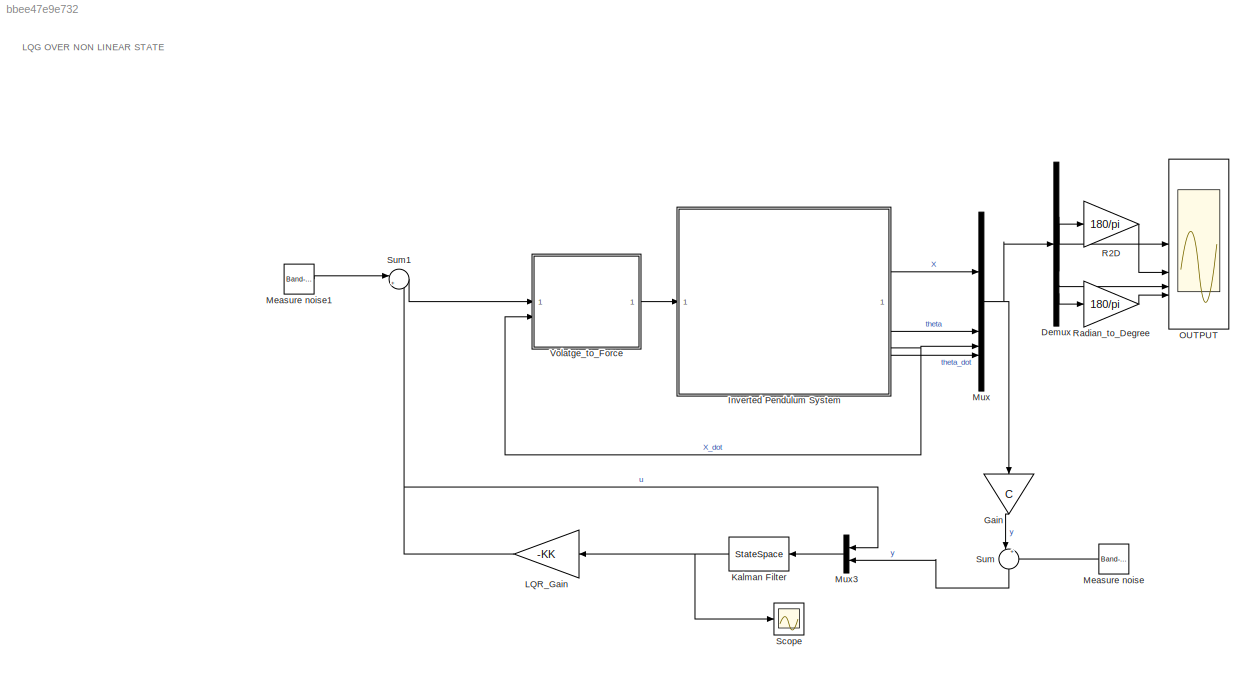
MODEL slx_bbee47e9e732
KIND model
CONFIG AbsTol = auto
CONFIG EnableMultiTasking = off
CONFIG FixedStep = auto
CONFIG MaxStep = auto
CONFIG MinStep = auto
CONFIG RelTol = 1e-3
CONFIG SampleTimeConstraint = Unconstrained
CONFIG SolverName = VariableStepAuto
CONFIG StartTime = 0.0
CONFIG StopTime = 10.0
BLOCK [Demux] Demux
BLOCK [Gain] Gain
  Gain = C
  Multiplication = Matrix(K*u) (u vector)
  NameLocation = left
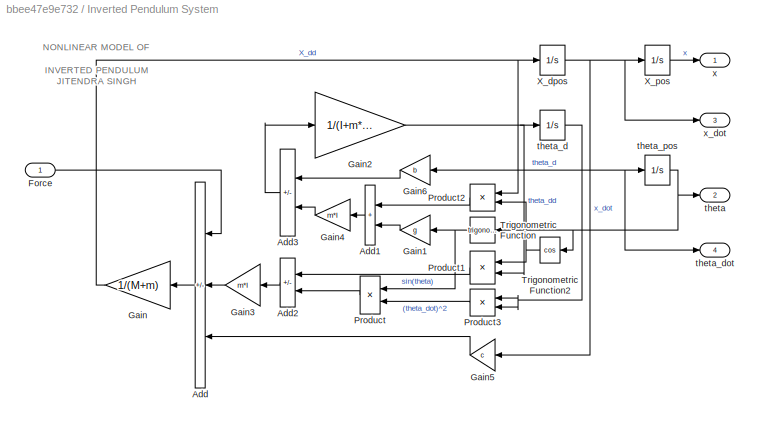
BLOCK [SubSystem] Inverted Pendulum System
BLOCK [Sum] Inverted Pendulum System/Add
  IconShape = rectangular
  Inputs = ++-
  NameLocation = top
BLOCK [Sum] Inverted Pendulum System/Add1
  IconShape = rectangular
  NameLocation = top
BLOCK [Sum] Inverted Pendulum System/Add2
  IconShape = rectangular
  Inputs = -+
  NameLocation = top
BLOCK [Sum] Inverted Pendulum System/Add3
  IconShape = rectangular
  Inputs = --
  NameLocation = top
BLOCK [Inport] Inverted Pendulum System/Force
BLOCK [Gain] Inverted Pendulum System/Gain
  Gain = 1/(M+m)
  NameLocation = top
BLOCK [Gain] Inverted Pendulum System/Gain1
  Gain = g
  NameLocation = top
BLOCK [Gain] Inverted Pendulum System/Gain2
  Gain = 1/(I+m*(l^2))
BLOCK [Gain] Inverted Pendulum System/Gain3
  Gain = m*l
  NameLocation = top
BLOCK [Gain] Inverted Pendulum System/Gain4
  Gain = m*l
  NameLocation = top
BLOCK [Gain] Inverted Pendulum System/Gain5
  Gain = c
  NameLocation = top
BLOCK [Gain] Inverted Pendulum System/Gain6
  Gain = b
  NameLocation = top
BLOCK [Product] Inverted Pendulum System/Product
  NameLocation = top
BLOCK [Product] Inverted Pendulum System/Product1
  NameLocation = top
BLOCK [Product] Inverted Pendulum System/Product2
  NameLocation = top
BLOCK [Product] Inverted Pendulum System/Product3
  NameLocation = top
BLOCK [Trigonometry] Inverted Pendulum System/Trigonometric Function
  NameLocation = top
BLOCK [Trigonometry] Inverted Pendulum System/Trigonometric Function2
  NameLocation = top
  Operator = cos
BLOCK [Integrator] Inverted Pendulum System/X_dpos
BLOCK [Integrator] Inverted Pendulum System/X_pos
  InitialCondition = 0.2
BLOCK [Outport] Inverted Pendulum System/theta
  Port = 2
  VectorParamsAs1DForOutWhenUnconnected = off
BLOCK [Integrator] Inverted Pendulum System/theta_d
BLOCK [Outport] Inverted Pendulum System/theta_dot
  Port = 4
  VectorParamsAs1DForOutWhenUnconnected = off
BLOCK [Integrator] Inverted Pendulum System/theta_pos
  InitialCondition = 160*(pi/180)
BLOCK [Outport] Inverted Pendulum System/x
  VectorParamsAs1DForOutWhenUnconnected = off
BLOCK [Outport] Inverted Pendulum System/x_dot
  Port = 3
  VectorParamsAs1DForOutWhenUnconnected = off
BLOCK [StateSpace] Kalman Filter
  A = sysKF.A
  B = sysKF.B
  C = sysKF.C
  D = sysKF.D
  InitialCondition = 0
BLOCK [Gain] LQR_Gain
  Gain = -KK
  Multiplication = Matrix(K*u) (u vector)
  NameLocation = top
BLOCK [Reference] Measure noise  REF=simulink/Sources/Band-Limited
White Noise
  SourceBlock = simulink/Sources/Band-Limited\nWhite Noise
  SourceType = Band-Limited White Noise.
BLOCK [Reference] Measure noise1  REF=simulink/Sources/Band-Limited
White Noise
  NameLocation = top
  SourceBlock = simulink/Sources/Band-Limited\nWhite Noise
  SourceType = Band-Limited White Noise.
BLOCK [Mux] Mux
  DisplayOption = bar
BLOCK [Mux] Mux3
  DisplayOption = bar
  Inputs = 2
  NameLocation = top
BLOCK [Scope] OUTPUT
  Floating = off
  NumInputPorts = 4
  ScopeSpecificationString = Simulink.scopes.TimeScopeBlockCfg('CurrentConfiguration', extmgr.ConfigurationSet(extmgr.Configuration('Core','General UI',true,'FigureColor',[1 1 1]),extmgr.Configuration('Core','Source UI',true),extmgr.Configuration('Sources','WiredSimulink',true,'DataLoggingVariableName','ScopeData2'),extmgr.Configuration('Visuals','Time Domain',true,'SerializedDisplays',{struct('MinYLimReal','0.0572','MaxYLimR...<+3975ch>
BLOCK [Gain] R2D
  Gain = 180/pi
BLOCK [Gain] Radian_to_Degree
  Gain = 180/pi
BLOCK [Scope] Scope
  Floating = off
  NumInputPorts = 1
  ScopeSpecificationString = Simulink.scopes.TimeScopeBlockCfg('CurrentConfiguration', extmgr.ConfigurationSet(extmgr.Configuration('Core','General UI',true),extmgr.Configuration('Core','Source UI',true),extmgr.Configuration('Sources','WiredSimulink',true,'DataLoggingVariableName','ScopeData1'),extmgr.Configuration('Visuals','Time Domain',true,'SerializedDisplays',{struct('MinYLimReal','-2.09438','MaxYLimReal','6.34015','YLab...<+1583ch>
BLOCK [Sum] Sum
  Inputs = |++
  NameLocation = left
BLOCK [Sum] Sum1
  Inputs = |++
  NameLocation = top
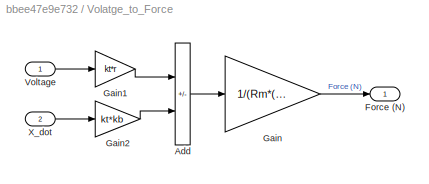
BLOCK [SubSystem] Volatge_to_Force
BLOCK [Sum] Volatge_to_Force/Add
  IconShape = rectangular
  Inputs = +-
BLOCK [Outport] Volatge_to_Force/Force (N)
  VectorParamsAs1DForOutWhenUnconnected = off
BLOCK [Gain] Volatge_to_Force/Gain
  Gain = 1/(Rm*(r)^2)
BLOCK [Gain] Volatge_to_Force/Gain1
  Gain = kt*r
BLOCK [Gain] Volatge_to_Force/Gain2
  Gain = kt*kb
BLOCK [Inport] Volatge_to_Force/Voltage
  NameLocation = top
BLOCK [Inport] Volatge_to_Force/X_dot
  Port = 2
ANNOTATION (root): LQG OVER NON LINEAR STATE
ANNOTATION Inverted Pendulum System: NONLINEAR MODEL OF INVERTED PENDULUM JITENDRA SINGH
LINE Demux:1 -> OUTPUT:1
LINE Demux:2 -> R2D:1
LINE Demux:3 -> OUTPUT:3
LINE Demux:4 -> Radian_to_Degree:1
LINE Gain:1 -> Sum:1
LINE Inverted Pendulum System/Add1:1 -> Inverted Pendulum System/Gain4:1
LINE Inverted Pendulum System/Add2:1 -> Inverted Pendulum System/Gain3:1
LINE Inverted Pendulum System/Add3:1 -> Inverted Pendulum System/Gain2:1
LINE Inverted Pendulum System/Add:1 -> Inverted Pendulum System/Gain:1
LINE Inverted Pendulum System/Force:1 -> Inverted Pendulum System/Add:1
LINE Inverted Pendulum System/Gain1:1 -> Inverted Pendulum System/Add1:2
NET Inverted Pendulum System/Gain2:1 -> Inverted Pendulum System/Product1:2, Inverted Pendulum System/theta_d:1
LINE Inverted Pendulum System/Gain3:1 -> Inverted Pendulum System/Add:2
LINE Inverted Pendulum System/Gain4:1 -> Inverted Pendulum System/Add3:2
LINE Inverted Pendulum System/Gain5:1 -> Inverted Pendulum System/Add:3
LINE Inverted Pendulum System/Gain6:1 -> Inverted Pendulum System/Add3:1
NET Inverted Pendulum System/Gain:1 -> Inverted Pendulum System/Product2:1, Inverted Pendulum System/X_dpos:1
LINE Inverted Pendulum System/Product1:1 -> Inverted Pendulum System/Add2:1
LINE Inverted Pendulum System/Product2:1 -> Inverted Pendulum System/Add1:1
LINE Inverted Pendulum System/Product3:1 -> Inverted Pendulum System/Product:2
LINE Inverted Pendulum System/Product:1 -> Inverted Pendulum System/Add2:2
NET Inverted Pendulum System/Trigonometric Function2:1 -> Inverted Pendulum System/Product1:1, Inverted Pendulum System/Product2:2
NET Inverted Pendulum System/Trigonometric Function:1 -> Inverted Pendulum System/Gain1:1, Inverted Pendulum System/Product:1
NET Inverted Pendulum System/X_dpos:1 -> Inverted Pendulum System/Gain5:1, Inverted Pendulum System/X_pos:1, Inverted Pendulum System/x_dot:1
LINE Inverted Pendulum System/X_pos:1 -> Inverted Pendulum System/x:1
NET Inverted Pendulum System/theta_d:1 -> Inverted Pendulum System/Gain6:1, Inverted Pendulum System/Product3:1, Inverted Pendulum System/Product3:2, Inverted Pendulum System/theta_dot:1, Inverted Pendulum System/theta_pos:1
NET Inverted Pendulum System/theta_pos:1 -> Inverted Pendulum System/Trigonometric Function2:1, Inverted Pendulum System/Trigonometric Function:1, Inverted Pendulum System/theta:1
LINE Inverted Pendulum System:1 -> Mux:1
LINE Inverted Pendulum System:2 -> Mux:2
NET Inverted Pendulum System:3 -> Mux:3, Volatge_to_Force:2
LINE Inverted Pendulum System:4 -> Mux:4
NET Kalman Filter:1 -> LQR_Gain:1, Scope:1
NET LQR_Gain:1 -> Mux3:1, Sum1:2
LINE Measure noise1:1 -> Sum1:1
LINE Measure noise:1 -> Sum:2
LINE Mux3:1 -> Kalman Filter:1
NET Mux:1 -> Demux:1, Gain:1
LINE R2D:1 -> OUTPUT:2
LINE Radian_to_Degree:1 -> OUTPUT:4
LINE Sum1:1 -> Volatge_to_Force:1
LINE Sum:1 -> Mux3:2
LINE Volatge_to_Force/Add:1 -> Volatge_to_Force/Gain:1
LINE Volatge_to_Force/Gain1:1 -> Volatge_to_Force/Add:1
LINE Volatge_to_Force/Gain2:1 -> Volatge_to_Force/Add:2
LINE Volatge_to_Force/Gain:1 -> Volatge_to_Force/Force (N):1
LINE Volatge_to_Force/Voltage:1 -> Volatge_to_Force/Gain1:1
LINE Volatge_to_Force/X_dot:1 -> Volatge_to_Force/Gain2:1
LINE Volatge_to_Force:1 -> Inverted Pendulum System:1
note: NET lines group one-source signal fan-out (src -> all destinations, sorted); 1:1 wires keep LINE
